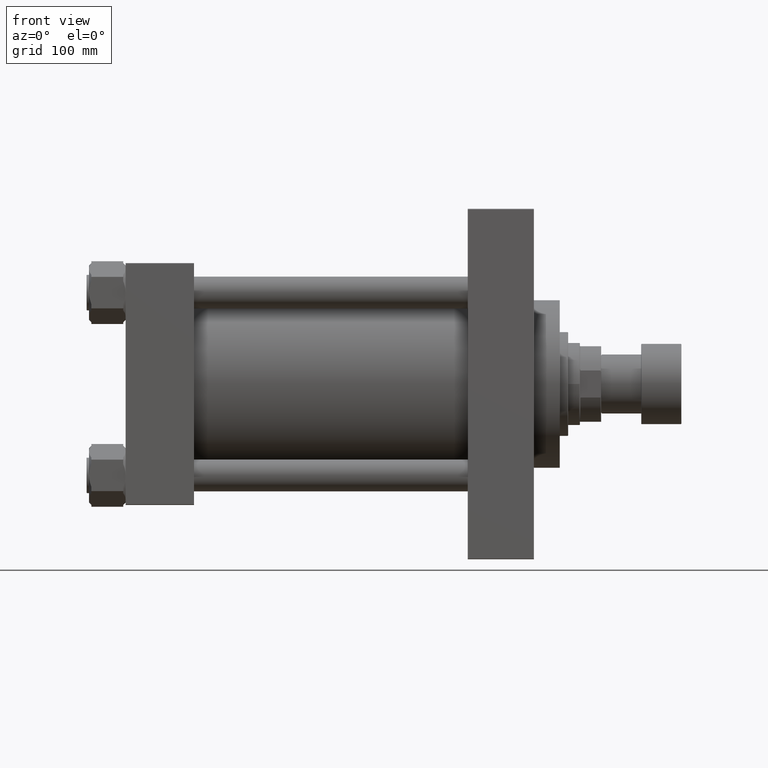
[diagram: clean part render]
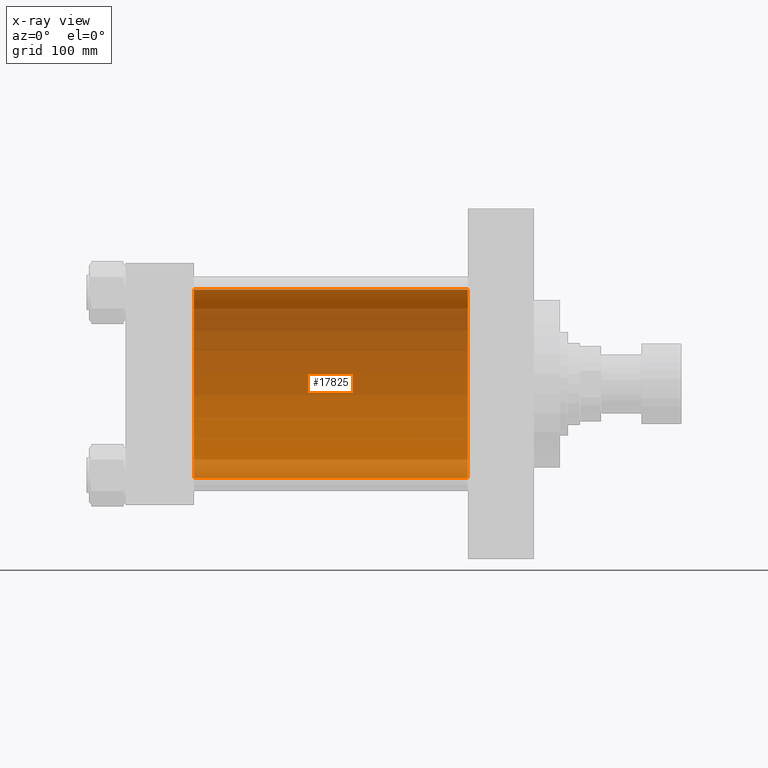
[diagram: x-ray — body ghosted, one internal face saturated and labeled with its STEP entity id]
A machine part, front view, then the same camera in x-ray: the body is ghosted and one INTERNAL B-rep face — a face not visible from any outside direction — is saturated and labeled: STEP entity #17825.
In plain terms, the highlighted cylindrical surface (partial cylindrical patch) has radius 80 mm, axis along (-1, -0, -0).
Its self-contained STEP definition (entity closure, byte-faithful):
#1450 = DIRECTION ( 'NONE',  ( 0.000000000000000000, 0.000000000000000000, 1.000000000000000000 ) ) ;
#4967 = CARTESIAN_POINT ( 'NONE',  ( 290.0000000000000568, 7.195089179213613832E-15, -80.00000000000000000 ) ) ;
#5005 = ORIENTED_EDGE ( 'NONE', *, *, #10073, .T. ) ;
#5130 = CARTESIAN_POINT ( 'NONE',  ( 290.0000000000000568, -2.602085213965210642E-15, 0.000000000000000000 ) ) ;
#5242 = VERTEX_POINT ( 'NONE', #41134 ) ;
#5990 = ORIENTED_EDGE ( 'NONE', *, *, #6972, .F. ) ;
#6274 = EDGE_CURVE ( 'NONE', #47508, #40680, #34059, .T. ) ;
#6972 = EDGE_CURVE ( 'NONE', #19576, #5242, #19774, .T. ) ;
#8630 = CARTESIAN_POINT ( 'NONE',  ( 290.0000000000000568, -2.602085213965210642E-15, 80.00000000000000000 ) ) ;
#10073 = EDGE_CURVE ( 'NONE', #40680, #5242, #45613, .T. ) ;
#11744 = DIRECTION ( 'NONE',  ( 0.000000000000000000, 0.000000000000000000, -1.000000000000000000 ) ) ;
#13068 = AXIS2_PLACEMENT_3D ( 'NONE', #45105, #22466, #11744 ) ;
#15222 = ORIENTED_EDGE ( 'NONE', *, *, #45819, .F. ) ;
#16679 = AXIS2_PLACEMENT_3D ( 'NONE', #44879, #30478, #38275 ) ;
#17520 = CARTESIAN_POINT ( 'NONE',  ( 58.00000000000000000, 7.195089179213613832E-15, -80.00000000000000000 ) ) ;
#17624 = EDGE_LOOP ( 'NONE', ( #15222, #28072, #5005, #5990 ) ) ;
#17825 = ADVANCED_FACE ( 'NONE', ( #22895 ), #45057, .F. ) ;
#19576 = VERTEX_POINT ( 'NONE', #17520 ) ;
#19774 = CIRCLE ( 'NONE', #16679, 80.00000000000000000 ) ;
#22466 = DIRECTION ( 'NONE',  ( 1.000000000000000000, 0.000000000000000000, 0.000000000000000000 ) ) ;
#22556 = LINE ( 'NONE', #41538, #47799 ) ;
#22895 = FACE_OUTER_BOUND ( 'NONE', #17624, .T. ) ;
#24406 = CARTESIAN_POINT ( 'NONE',  ( 290.0000000000000568, -2.602085213965210642E-15, 80.00000000000000000 ) ) ;
#26209 = DIRECTION ( 'NONE',  ( -1.000000000000000000, -0.000000000000000000, -0.000000000000000000 ) ) ;
#26337 = VECTOR ( 'NONE', #42678, 1000.000000000000000 ) ;
#28072 = ORIENTED_EDGE ( 'NONE', *, *, #6274, .T. ) ;
#30424 = DIRECTION ( 'NONE',  ( -1.000000000000000000, -0.000000000000000000, -0.000000000000000000 ) ) ;
#30478 = DIRECTION ( 'NONE',  ( 1.000000000000000000, 0.000000000000000000, 0.000000000000000000 ) ) ;
#33232 = AXIS2_PLACEMENT_3D ( 'NONE', #5130, #30424, #1450 ) ;
#34059 = CIRCLE ( 'NONE', #13068, 80.00000000000000000 ) ;
#38275 = DIRECTION ( 'NONE',  ( 0.000000000000000000, 0.000000000000000000, -1.000000000000000000 ) ) ;
#40680 = VERTEX_POINT ( 'NONE', #8630 ) ;
#41134 = CARTESIAN_POINT ( 'NONE',  ( 58.00000000000000000, -2.602085213965210642E-15, 80.00000000000000000 ) ) ;
#41538 = CARTESIAN_POINT ( 'NONE',  ( 290.0000000000000568, 7.195089179213613832E-15, -80.00000000000000000 ) ) ;
#42678 = DIRECTION ( 'NONE',  ( -1.000000000000000000, -0.000000000000000000, -0.000000000000000000 ) ) ;
#44879 = CARTESIAN_POINT ( 'NONE',  ( 58.00000000000000000, -2.602085213965210642E-15, 0.000000000000000000 ) ) ;
#45057 = CYLINDRICAL_SURFACE ( 'NONE', #33232, 80.00000000000000000 ) ;
#45105 = CARTESIAN_POINT ( 'NONE',  ( 290.0000000000000568, -2.602085213965210642E-15, 0.000000000000000000 ) ) ;
#45613 = LINE ( 'NONE', #24406, #26337 ) ;
#45819 = EDGE_CURVE ( 'NONE', #47508, #19576, #22556, .T. ) ;
#47508 = VERTEX_POINT ( 'NONE', #4967 ) ;
#47799 = VECTOR ( 'NONE', #26209, 1000.000000000000000 ) ;